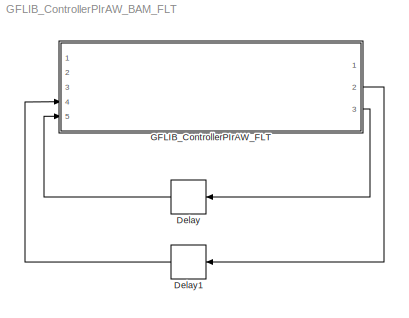
MODEL GFLIB_ControllerPIrAW_BAM_FLT
KIND model
BLOCK [Delay] Delay
  DelayLength = 1
  InitialCondition = 0
  InputPortMap = u0
  Ports = [1, 1]
  SID = 23
BLOCK [Delay] Delay1
  DelayLength = 1
  InitialCondition = 0
  InputPortMap = u0
  Ports = [1, 1]
  SID = 24
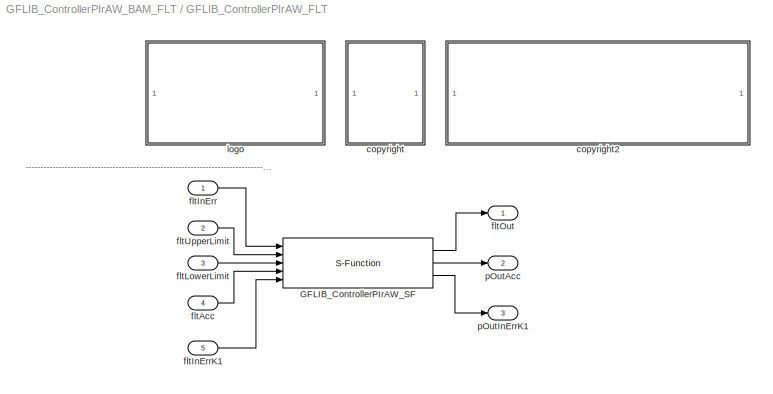
BLOCK [SubSystem] GFLIB_ControllerPIrAW_FLT
  Ports = [5, 3]
  RequestExecContextInheritance = off
  SID = 1
BLOCK [S-Function] GFLIB_ControllerPIrAW_FLT/GFLIB_ControllerPIrAW_SF
  EnableBusSupport = off
  FunctionName = GFLIB_ControllerPIrAW_SF_FLT
  Parameters = fltCC1,fltCC2
  Ports = [5, 3]
  SID = 4
BLOCK [SubSystem] GFLIB_ControllerPIrAW_FLT/<copyright redacted>
  Ports = []
  RequestExecContextInheritance = off
  SID = 17
BLOCK [SubSystem] GFLIB_ControllerPIrAW_FLT/copyright2
  Ports = []
  RequestExecContextInheritance = off
  SID = 20
BLOCK [Inport] GFLIB_ControllerPIrAW_FLT/fltAcc
  IconDisplay = Port number
  Port = 4
  SID = 8
BLOCK [Inport] GFLIB_ControllerPIrAW_FLT/fltInErr
  IconDisplay = Port number
  SID = 5
BLOCK [Inport] GFLIB_ControllerPIrAW_FLT/fltInErrK1
  IconDisplay = Port number
  Port = 5
  SID = 9
BLOCK [Inport] GFLIB_ControllerPIrAW_FLT/fltLowerLimit
  IconDisplay = Port number
  Port = 3
  SID = 7
BLOCK [Outport] GFLIB_ControllerPIrAW_FLT/fltOut
  IconDisplay = Port number
  SID = 10
BLOCK [Inport] GFLIB_ControllerPIrAW_FLT/fltUpperLimit
  IconDisplay = Port number
  Port = 2
  SID = 6
BLOCK [SubSystem] GFLIB_ControllerPIrAW_FLT/logo
  Ports = []
  RequestExecContextInheritance = off
  SID = 13
BLOCK [Outport] GFLIB_ControllerPIrAW_FLT/pOutAcc
  IconDisplay = Port number
  Port = 2
  SID = 11
BLOCK [Outport] GFLIB_ControllerPIrAW_FLT/pOutInErrK1
  IconDisplay = Port number
  Port = 3
  SID = 12
ANNOTATION GFLIB_ControllerPIrAW_FLT: ---------------------------------------------------------------------------------------------------------------------------------------------------------------------------------------------------
LINE Delay1:1 -> GFLIB_ControllerPIrAW_FLT:4
LINE Delay:1 -> GFLIB_ControllerPIrAW_FLT:5
LINE GFLIB_ControllerPIrAW_FLT/GFLIB_ControllerPIrAW_SF:1 -> GFLIB_ControllerPIrAW_FLT/fltOut:1
LINE GFLIB_ControllerPIrAW_FLT/GFLIB_ControllerPIrAW_SF:2 -> GFLIB_ControllerPIrAW_FLT/pOutAcc:1
LINE GFLIB_ControllerPIrAW_FLT/GFLIB_ControllerPIrAW_SF:3 -> GFLIB_ControllerPIrAW_FLT/pOutInErrK1:1
LINE GFLIB_ControllerPIrAW_FLT/fltAcc:1 -> GFLIB_ControllerPIrAW_FLT/GFLIB_ControllerPIrAW_SF:4
LINE GFLIB_ControllerPIrAW_FLT/fltInErr:1 -> GFLIB_ControllerPIrAW_FLT/GFLIB_ControllerPIrAW_SF:1
LINE GFLIB_ControllerPIrAW_FLT/fltInErrK1:1 -> GFLIB_ControllerPIrAW_FLT/GFLIB_ControllerPIrAW_SF:5
LINE GFLIB_ControllerPIrAW_FLT/fltLowerLimit:1 -> GFLIB_ControllerPIrAW_FLT/GFLIB_ControllerPIrAW_SF:3
LINE GFLIB_ControllerPIrAW_FLT/fltUpperLimit:1 -> GFLIB_ControllerPIrAW_FLT/GFLIB_ControllerPIrAW_SF:2
LINE GFLIB_ControllerPIrAW_FLT:2 -> Delay1:1
LINE GFLIB_ControllerPIrAW_FLT:3 -> Delay:1
